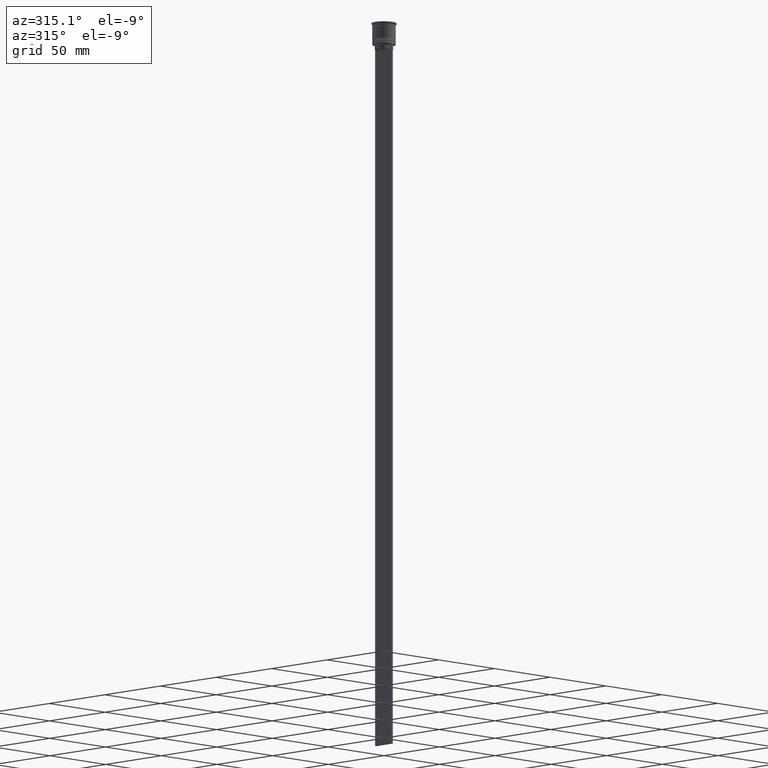
[diagram: clean part render]
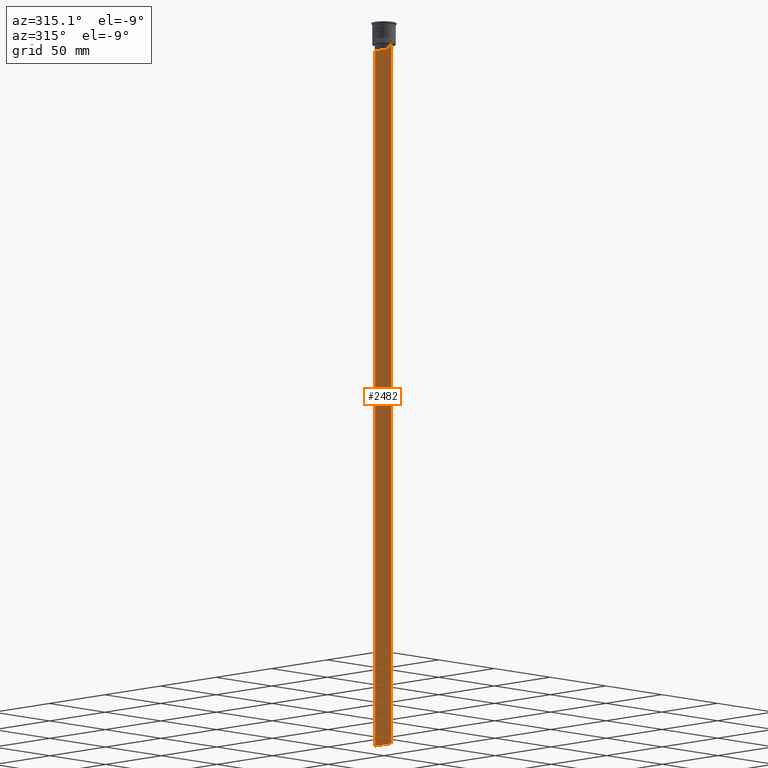
[diagram: same view with one face highlighted and labeled with its STEP entity id]
A machine part, auxiliary view. The second image highlights one B-rep face of the part: STEP entity #2482.
In plain terms, the highlighted planar face has unit normal (-1, 0, 0).
Its self-contained STEP definition (entity closure, byte-faithful):
#29 = VERTEX_POINT ( 'NONE', #2416 ) ;
#36 = CARTESIAN_POINT ( 'NONE',  ( -0.5000000000000000000, 5.899999999999998579, -17.00000000000000000 ) ) ;
#37 = VECTOR ( 'NONE', #1333, 1000.000000000000000 ) ;
#61 = EDGE_CURVE ( 'NONE', #1246, #2104, #1841, .T. ) ;
#89 = CARTESIAN_POINT ( 'NONE',  ( -0.5000000000000000000, 7.383088784512886527, -14.00000000000000178 ) ) ;
#128 = LINE ( 'NONE', #711, #199 ) ;
#199 = VECTOR ( 'NONE', #518, 1000.000000000000000 ) ;
#210 = DIRECTION ( 'NONE',  ( -1.000000000000000000, 0.000000000000000000, 0.000000000000000000 ) ) ;
#223 = LINE ( 'NONE', #36, #1526 ) ;
#261 = CARTESIAN_POINT ( 'NONE',  ( -0.5000000000000000000, 5.878775382679625849, 0.000000000000000000 ) ) ;
#291 = VECTOR ( 'NONE', #2106, 1000.000000000000000 ) ;
#301 = CARTESIAN_POINT ( 'NONE',  ( -0.5000000000000000000, 6.046020074006152711, -14.33335695351623151 ) ) ;
#312 = LINE ( 'NONE', #2235, #2172 ) ;
#335 = VECTOR ( 'NONE', #1542, 1000.000000000000000 ) ;
#410 = PLANE ( 'NONE',  #1325 ) ;
#456 = VERTEX_POINT ( 'NONE', #1474 ) ;
#460 = B_SPLINE_CURVE_WITH_KNOTS ( 'NONE', 3,
 ( #830, #1589, #301, #1844 ),
 .UNSPECIFIED., .F., .F.,
 ( 4, 4 ),
 ( 0.01087727669788152163, 0.01158556069794289788 ),
 .UNSPECIFIED. ) ;
#518 = DIRECTION ( 'NONE',  ( 0.000000000000000000, -1.000000000000000000, 0.000000000000000000 ) ) ;
#548 = CARTESIAN_POINT ( 'NONE',  ( -0.5000000000000000000, -7.499999999999999112, -14.00000000000000178 ) ) ;
#561 = CARTESIAN_POINT ( 'NONE',  ( -0.5000000000000000000, -7.499999999999999112, 1.033296378372908997 ) ) ;
#572 = VERTEX_POINT ( 'NONE', #548 ) ;
#584 = CARTESIAN_POINT ( 'NONE',  ( -0.5000000000000000000, -5.878775382679625849, 0.000000000000000000 ) ) ;
#645 = LINE ( 'NONE', #2181, #1129 ) ;
#658 = LINE ( 'NONE', #261, #2132 ) ;
#711 = CARTESIAN_POINT ( 'NONE',  ( -0.5000000000000000000, -7.499999999999999112, -14.00000000000000178 ) ) ;
#814 = CARTESIAN_POINT ( 'NONE',  ( -0.5000000000000000000, -7.383088784512886527, -14.00000000000000178 ) ) ;
#830 = CARTESIAN_POINT ( 'NONE',  ( -0.5000000000000000000, 6.380438856379706536, -14.00000000000000178 ) ) ;
#831 = ORIENTED_EDGE ( 'NONE', *, *, #1821, .F. ) ;
#871 = CARTESIAN_POINT ( 'NONE',  ( -0.5000000000000000000, -7.499999999999999112, -14.00000000000000178 ) ) ;
#898 = DIRECTION ( 'NONE',  ( 0.000000000000000000, -1.000000000000000000, 0.000000000000000000 ) ) ;
#974 = EDGE_CURVE ( 'NONE', #2270, #1427, #460, .T. ) ;
#990 = DIRECTION ( 'NONE',  ( 0.000000000000000000, 0.000000000000000000, -1.000000000000000000 ) ) ;
#1129 = VECTOR ( 'NONE', #1230, 1000.000000000000000 ) ;
#1158 = LINE ( 'NONE', #2279, #2335 ) ;
#1174 = CARTESIAN_POINT ( 'NONE',  ( -0.5000000000000000000, -7.499999999999999112, 1.033296378372908997 ) ) ;
#1181 = VERTEX_POINT ( 'NONE', #2426 ) ;
#1213 = CARTESIAN_POINT ( 'NONE',  ( -0.5000000000000000000, 5.878775382679625849, -14.50000000000000000 ) ) ;
#1229 = ORIENTED_EDGE ( 'NONE', *, *, #61, .F. ) ;
#1230 = DIRECTION ( 'NONE',  ( 0.000000000000000000, 1.000000000000000000, 0.000000000000000000 ) ) ;
#1246 = VERTEX_POINT ( 'NONE', #1907 ) ;
#1293 = ORIENTED_EDGE ( 'NONE', *, *, #2222, .F. ) ;
#1303 = CARTESIAN_POINT ( 'NONE',  ( -0.5000000000000000000, -6.380438856379706536, -14.00000000000000178 ) ) ;
#1308 = ORIENTED_EDGE ( 'NONE', *, *, #1870, .F. ) ;
#1325 = AXIS2_PLACEMENT_3D ( 'NONE', #1174, #210, #1939 ) ;
#1333 = DIRECTION ( 'NONE',  ( 0.000000000000000000, 0.000000000000000000, -1.000000000000000000 ) ) ;
#1340 = ORIENTED_EDGE ( 'NONE', *, *, #1520, .F. ) ;
#1343 = CARTESIAN_POINT ( 'NONE',  ( -0.5000000000000000000, -7.499999999999999112, -14.00000000000000178 ) ) ;
#1382 = CARTESIAN_POINT ( 'NONE',  ( -0.5000000000000000000, 5.878775382679625849, -17.00000000000000000 ) ) ;
#1383 = EDGE_CURVE ( 'NONE', #1656, #572, #1966, .T. ) ;
#1405 = ORIENTED_EDGE ( 'NONE', *, *, #1631, .F. ) ;
#1414 = EDGE_LOOP ( 'NONE', ( #2028, #1989, #831, #2360, #1405, #1959, #1632, #1308, #1229, #1694, #1293, #1340 ) ) ;
#1427 = VERTEX_POINT ( 'NONE', #1213 ) ;
#1431 = CARTESIAN_POINT ( 'NONE',  ( -0.5000000000000000000, 7.500000000000002665, -464.0000000000000000 ) ) ;
#1474 = CARTESIAN_POINT ( 'NONE',  ( -0.5000000000000000000, -7.499999999999999112, -464.0000000000000000 ) ) ;
#1481 = VERTEX_POINT ( 'NONE', #89 ) ;
#1498 = DIRECTION ( 'NONE',  ( 0.000000000000000000, 0.000000000000000000, -1.000000000000000000 ) ) ;
#1520 = EDGE_CURVE ( 'NONE', #1427, #2177, #658, .T. ) ;
#1526 = VECTOR ( 'NONE', #2354, 1000.000000000000000 ) ;
#1542 = DIRECTION ( 'NONE',  ( -0.000000000000000000, -0.000000000000000000, 1.000000000000000000 ) ) ;
#1589 = CARTESIAN_POINT ( 'NONE',  ( -0.5000000000000000000, 6.213239387491007015, -14.16668843563492430 ) ) ;
#1603 = VECTOR ( 'NONE', #2224, 1000.000000000000000 ) ;
#1631 = EDGE_CURVE ( 'NONE', #456, #2230, #645, .T. ) ;
#1632 = ORIENTED_EDGE ( 'NONE', *, *, #1383, .F. ) ;
#1656 = VERTEX_POINT ( 'NONE', #814 ) ;
#1669 = CARTESIAN_POINT ( 'NONE',  ( -0.5000000000000000000, 6.380438856379706536, -14.00000000000000178 ) ) ;
#1675 = CARTESIAN_POINT ( 'NONE',  ( -0.5000000000000000000, -6.046019991840948293, -14.33335703538585726 ) ) ;
#1694 = ORIENTED_EDGE ( 'NONE', *, *, #2341, .F. ) ;
#1728 = LINE ( 'NONE', #1343, #291 ) ;
#1821 = EDGE_CURVE ( 'NONE', #1181, #1481, #312, .T. ) ;
#1841 = B_SPLINE_CURVE_WITH_KNOTS ( 'NONE', 3,
 ( #2067, #1675, #2449, #1303 ),
 .UNSPECIFIED., .F., .F.,
 ( 4, 4 ),
 ( 0.02765270321082434479, 0.02836198271238431559 ),
 .UNSPECIFIED. ) ;
#1844 = CARTESIAN_POINT ( 'NONE',  ( -0.5000000000000000000, 5.878775382679625849, -14.50000000000000000 ) ) ;
#1870 = EDGE_CURVE ( 'NONE', #2104, #1656, #128, .T. ) ;
#1907 = CARTESIAN_POINT ( 'NONE',  ( -0.5000000000000000000, -5.878775382679625849, -14.50000000000000000 ) ) ;
#1939 = DIRECTION ( 'NONE',  ( 0.000000000000000000, 0.000000000000000000, 1.000000000000000000 ) ) ;
#1959 = ORIENTED_EDGE ( 'NONE', *, *, #1978, .F. ) ;
#1966 = LINE ( 'NONE', #871, #1603 ) ;
#1978 = EDGE_CURVE ( 'NONE', #572, #456, #2280, .T. ) ;
#1989 = ORIENTED_EDGE ( 'NONE', *, *, #2402, .F. ) ;
#1992 = CARTESIAN_POINT ( 'NONE',  ( -0.5000000000000000000, -6.380438856379706536, -14.00000000000000178 ) ) ;
#2028 = ORIENTED_EDGE ( 'NONE', *, *, #974, .F. ) ;
#2067 = CARTESIAN_POINT ( 'NONE',  ( -0.5000000000000000000, -5.878775382679625849, -14.50000000000000000 ) ) ;
#2104 = VERTEX_POINT ( 'NONE', #1992 ) ;
#2106 = DIRECTION ( 'NONE',  ( 0.000000000000000000, -1.000000000000000000, 0.000000000000000000 ) ) ;
#2129 = FACE_OUTER_BOUND ( 'NONE', #1414, .T. ) ;
#2132 = VECTOR ( 'NONE', #990, 1000.000000000000000 ) ;
#2172 = VECTOR ( 'NONE', #898, 1000.000000000000000 ) ;
#2177 = VERTEX_POINT ( 'NONE', #1382 ) ;
#2181 = CARTESIAN_POINT ( 'NONE',  ( -0.5000000000000000000, -7.499999999999999112, -464.0000000000000000 ) ) ;
#2222 = EDGE_CURVE ( 'NONE', #2177, #29, #223, .T. ) ;
#2224 = DIRECTION ( 'NONE',  ( 0.000000000000000000, -1.000000000000000000, 0.000000000000000000 ) ) ;
#2230 = VERTEX_POINT ( 'NONE', #1431 ) ;
#2235 = CARTESIAN_POINT ( 'NONE',  ( -0.5000000000000000000, -7.499999999999999112, -14.00000000000000178 ) ) ;
#2270 = VERTEX_POINT ( 'NONE', #1669 ) ;
#2279 = CARTESIAN_POINT ( 'NONE',  ( -0.5000000000000000000, 7.500000000000002665, 1.033296378372908997 ) ) ;
#2280 = LINE ( 'NONE', #561, #37 ) ;
#2305 = LINE ( 'NONE', #584, #335 ) ;
#2335 = VECTOR ( 'NONE', #1498, 1000.000000000000000 ) ;
#2341 = EDGE_CURVE ( 'NONE', #29, #1246, #2305, .T. ) ;
#2354 = DIRECTION ( 'NONE',  ( 0.000000000000000000, -1.000000000000000000, 0.000000000000000000 ) ) ;
#2360 = ORIENTED_EDGE ( 'NONE', *, *, #2447, .T. ) ;
#2402 = EDGE_CURVE ( 'NONE', #1481, #2270, #1728, .T. ) ;
#2416 = CARTESIAN_POINT ( 'NONE',  ( -0.5000000000000000000, -5.878775382679625849, -17.00000000000000000 ) ) ;
#2426 = CARTESIAN_POINT ( 'NONE',  ( -0.5000000000000000000, 7.500000000000002665, -14.00000000000000178 ) ) ;
#2447 = EDGE_CURVE ( 'NONE', #1181, #2230, #1158, .T. ) ;
#2449 = CARTESIAN_POINT ( 'NONE',  ( -0.5000000000000000000, -6.213239311785844876, -14.16668851110870087 ) ) ;
#2482 = ADVANCED_FACE ( 'NONE', ( #2129 ), #410, .T. ) ;